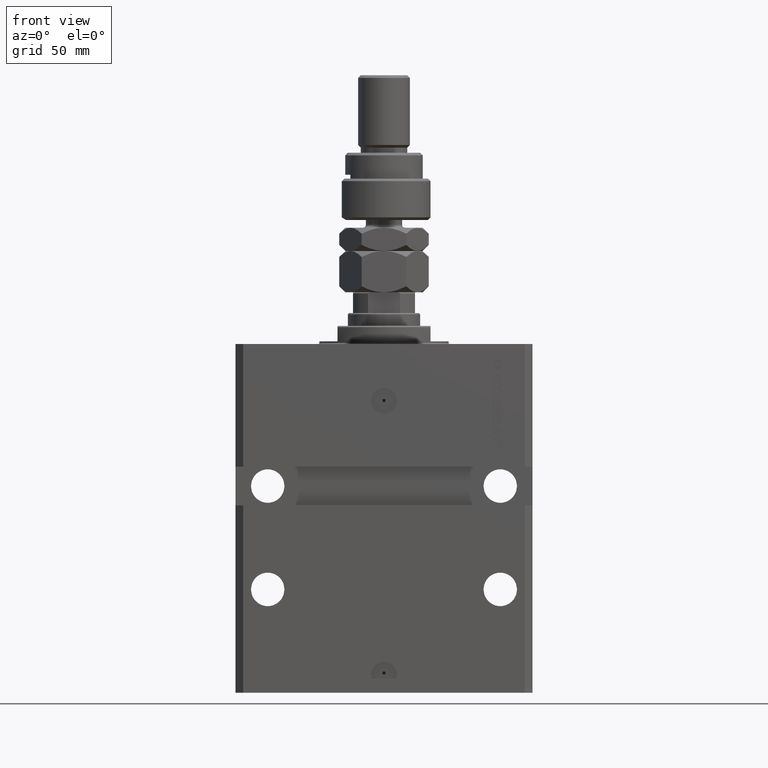
[diagram: clean part render]
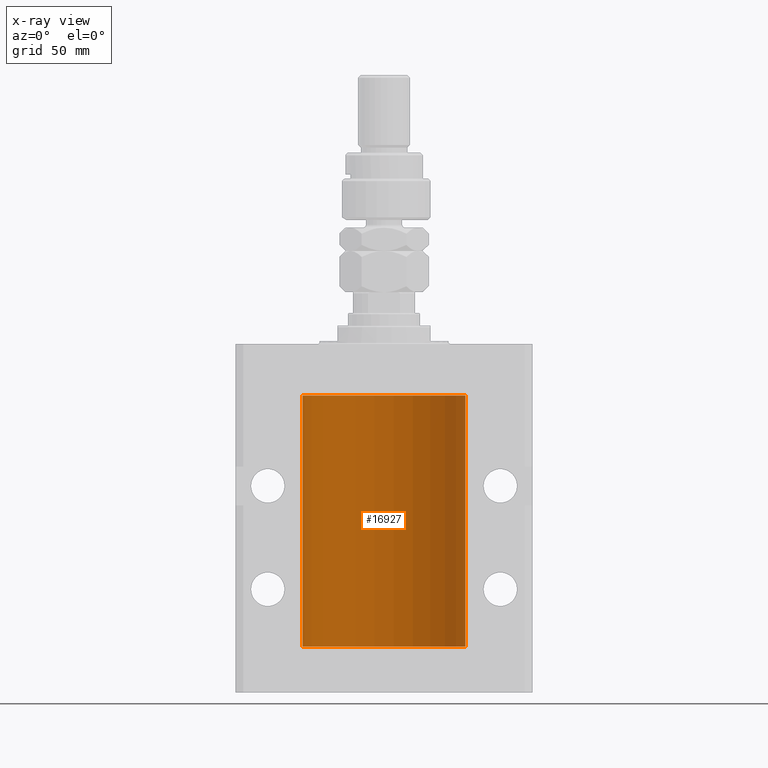
[diagram: x-ray — body ghosted, one internal face saturated and labeled with its STEP entity id]
A machine part, front view, then the same camera in x-ray: the body is ghosted and one INTERNAL B-rep face — a face not visible from any outside direction — is saturated and labeled: STEP entity #16927.
In plain terms, the highlighted cylindrical surface (partial cylindrical patch) has radius 31.5 mm, axis along (0, 0, 1).
Its self-contained STEP definition (entity closure, byte-faithful):
#1102 = VERTEX_POINT ( 'NONE', #31821 ) ;
#2444 = ORIENTED_EDGE ( 'NONE', *, *, #12022, .T. ) ;
#2453 = CARTESIAN_POINT ( 'NONE',  ( -31.49851563474690508, 0.3150284575672371301, -113.4540179115962246 ) ) ;
#3225 = CARTESIAN_POINT ( 'NONE',  ( -31.49528028230855270, 0.5573323339569572488, -113.6734900881931907 ) ) ;
#4104 = CARTESIAN_POINT ( 'NONE',  ( -31.49851563474691218, 0.3150284575672402942, -28.45401791159624239 ) ) ;
#4768 = LINE ( 'NONE', #45773, #21980 ) ;
#5999 = LINE ( 'NONE', #14937, #34172 ) ;
#6951 = EDGE_LOOP ( 'NONE', ( #18523, #44712, #24094, #41570, #22738, #46429, #34996, #2444 ) ) ;
#7022 = CARTESIAN_POINT ( 'NONE',  ( -31.50000000000006395, 3.480980906124966778E-13, -29.62500000000323297 ) ) ;
#7328 = CARTESIAN_POINT ( 'NONE',  ( -31.50000000000006395, 3.480980906124966778E-13, -29.62500000000323297 ) ) ;
#7412 = EDGE_CURVE ( 'NONE', #8446, #28219, #31495, .T. ) ;
#7587 = DIRECTION ( 'NONE',  ( -0.000000000000000000, -0.000000000000000000, 1.000000000000000000 ) ) ;
#7719 = DIRECTION ( 'NONE',  ( -0.000000000000000000, -0.000000000000000000, 1.000000000000000000 ) ) ;
#8420 = EDGE_CURVE ( 'NONE', #1102, #16886, #5999, .T. ) ;
#8446 = VERTEX_POINT ( 'NONE', #23319 ) ;
#8784 = B_SPLINE_CURVE_WITH_KNOTS ( 'NONE', 3,
 ( #23832, #44079, #15174, #4104, #50950, #43049, #26986, #39861, #23307, #20150, #51974, #7022 ),
 .UNSPECIFIED., .F., .F.,
 ( 4, 2, 2, 2, 2, 4 ),
 ( 5.360009401240440187E-19, 0.0002442604562134703173, 0.0004885209124269400925, 0.0009770418248538795345, 0.001465562737280818977, 0.001954083649707758635 ),
 .UNSPECIFIED. ) ;
#9322 = AXIS2_PLACEMENT_3D ( 'NONE', #22734, #7719, #47962 ) ;
#9978 = CARTESIAN_POINT ( 'NONE',  ( 31.50000000000000000, 0.000000000000000000, -117.0999999999999943 ) ) ;
#10608 = CARTESIAN_POINT ( 'NONE',  ( -31.50000000000006395, 3.480981129463732167E-13, -114.6250000000032401 ) ) ;
#11158 = CARTESIAN_POINT ( 'NONE',  ( -31.50000000000006395, 3.480981129463732167E-13, -114.6250000000032401 ) ) ;
#11281 = EDGE_CURVE ( 'NONE', #11913, #33640, #42675, .T. ) ;
#11913 = VERTEX_POINT ( 'NONE', #11966 ) ;
#11966 = CARTESIAN_POINT ( 'NONE',  ( 31.50000000000000000, 0.000000000000000000, -20.00000000000000355 ) ) ;
#12022 = EDGE_CURVE ( 'NONE', #8446, #16886, #42012, .T. ) ;
#12530 = CARTESIAN_POINT ( 'NONE',  ( -31.50000000000000000, 3.857637417314161900E-15, -20.00000000000000355 ) ) ;
#14570 = CARTESIAN_POINT ( 'NONE',  ( -31.49853548231895672, 0.3253851488062226571, -114.5585547052568671 ) ) ;
#14937 = CARTESIAN_POINT ( 'NONE',  ( -31.50000000000000000, 3.857637417314161900E-15, -117.0999999999999943 ) ) ;
#15174 = CARTESIAN_POINT ( 'NONE',  ( -31.49966591610109390, 0.1636376958180632002, -28.39126189995839411 ) ) ;
#15255 = VERTEX_POINT ( 'NONE', #45871 ) ;
#16586 = EDGE_CURVE ( 'NONE', #15255, #28219, #8784, .T. ) ;
#16610 = DIRECTION ( 'NONE',  ( -0.000000000000000000, -0.000000000000000000, 1.000000000000000000 ) ) ;
#16659 = AXIS2_PLACEMENT_3D ( 'NONE', #18188, #21855, #33935 ) ;
#16886 = VERTEX_POINT ( 'NONE', #11158 ) ;
#16927 = ADVANCED_FACE ( 'NONE', ( #31109 ), #19576, .F. ) ;
#18188 = CARTESIAN_POINT ( 'NONE',  ( 0.000000000000000000, 0.000000000000000000, -20.00000000000000355 ) ) ;
#18523 = ORIENTED_EDGE ( 'NONE', *, *, #8420, .F. ) ;
#18777 = CARTESIAN_POINT ( 'NONE',  ( -31.49999999999999289, 0.08259258789479095864, -113.3749999999999858 ) ) ;
#19281 = CARTESIAN_POINT ( 'NONE',  ( -31.50000000000000000, 0.1631661150515248127, -114.6249999999998721 ) ) ;
#19333 = LINE ( 'NONE', #44028, #44836 ) ;
#19576 = CYLINDRICAL_SURFACE ( 'NONE', #9322, 31.50000000000000000 ) ;
#20150 = CARTESIAN_POINT ( 'NONE',  ( -31.49853548231893541, 0.3253851488062241559, -29.55855470525682094 ) ) ;
#21855 = DIRECTION ( 'NONE',  ( 0.000000000000000000, 0.000000000000000000, 1.000000000000000000 ) ) ;
#21980 = VECTOR ( 'NONE', #16610, 1000.000000000000000 ) ;
#22159 = EDGE_CURVE ( 'NONE', #41042, #11913, #4768, .T. ) ;
#22734 = CARTESIAN_POINT ( 'NONE',  ( 0.000000000000000000, 0.000000000000000000, -117.0999999999999943 ) ) ;
#22738 = ORIENTED_EDGE ( 'NONE', *, *, #38876, .F. ) ;
#23307 = CARTESIAN_POINT ( 'NONE',  ( -31.49526081842315151, 0.5587119163470772865, -29.32511513093050937 ) ) ;
#23319 = CARTESIAN_POINT ( 'NONE',  ( -31.50000000000000000, -2.862469004324082213E-15, -113.3750000000000000 ) ) ;
#23832 = CARTESIAN_POINT ( 'NONE',  ( -31.50000000000000000, 6.759071642563815395E-15, -28.37500000000000355 ) ) ;
#24094 = ORIENTED_EDGE ( 'NONE', *, *, #22159, .T. ) ;
#25458 = CIRCLE ( 'NONE', #31334, 31.50000000000000000 ) ;
#26294 = DIRECTION ( 'NONE',  ( 1.000000000000000000, 0.000000000000000000, 0.000000000000000000 ) ) ;
#26986 = CARTESIAN_POINT ( 'NONE',  ( -31.49380014137585704, 0.6249421240571523262, -28.83671479190291365 ) ) ;
#28219 = VERTEX_POINT ( 'NONE', #7328 ) ;
#30312 = CARTESIAN_POINT ( 'NONE',  ( -31.49770767031180441, 0.3843648832734344878, -113.5004608125965717 ) ) ;
#31109 = FACE_OUTER_BOUND ( 'NONE', #6951, .T. ) ;
#31334 = AXIS2_PLACEMENT_3D ( 'NONE', #34961, #46294, #26294 ) ;
#31495 = LINE ( 'NONE', #35717, #46779 ) ;
#31821 = CARTESIAN_POINT ( 'NONE',  ( -31.50000000000000000, 3.857637417314161900E-15, -117.0999999999999943 ) ) ;
#33640 = VERTEX_POINT ( 'NONE', #12530 ) ;
#33935 = DIRECTION ( 'NONE',  ( 1.000000000000000000, 0.000000000000000000, 0.000000000000000000 ) ) ;
#34172 = VECTOR ( 'NONE', #50704, 1000.000000000000000 ) ;
#34961 = CARTESIAN_POINT ( 'NONE',  ( 0.000000000000000000, 0.000000000000000000, -117.0999999999999943 ) ) ;
#34996 = ORIENTED_EDGE ( 'NONE', *, *, #7412, .F. ) ;
#35717 = CARTESIAN_POINT ( 'NONE',  ( -31.50000000000000000, 3.857637417314161900E-15, -117.0999999999999943 ) ) ;
#38006 = EDGE_CURVE ( 'NONE', #41042, #1102, #25458, .T. ) ;
#38876 = EDGE_CURVE ( 'NONE', #15255, #33640, #19333, .T. ) ;
#39861 = CARTESIAN_POINT ( 'NONE',  ( -31.49379784581975983, 0.6250577973157598333, -29.16284184848847971 ) ) ;
#41042 = VERTEX_POINT ( 'NONE', #9978 ) ;
#41570 = ORIENTED_EDGE ( 'NONE', *, *, #11281, .T. ) ;
#42012 = B_SPLINE_CURVE_WITH_KNOTS ( 'NONE', 3,
 ( #47152, #18777, #47411, #2453, #30312, #3225, #42947, #51353, #46641, #14570, #19281, #10608 ),
 .UNSPECIFIED., .F., .F.,
 ( 4, 2, 2, 2, 2, 4 ),
 ( 3.062184955773984539E-18, 0.0002442604562134841409, 0.0004885209124269652460, 0.0009770418248538977491, 0.001465562737280830252, 0.001954083649707762538 ),
 .UNSPECIFIED. ) ;
#42675 = CIRCLE ( 'NONE', #16659, 31.50000000000000000 ) ;
#42947 = CARTESIAN_POINT ( 'NONE',  ( -31.49380014137585704, 0.6249421240571484404, -113.8367147919028923 ) ) ;
#43049 = CARTESIAN_POINT ( 'NONE',  ( -31.49528028230855270, 0.5573323339569594692, -28.67349008819320844 ) ) ;
#44028 = CARTESIAN_POINT ( 'NONE',  ( -31.50000000000000000, 3.857637417314161900E-15, -117.0999999999999943 ) ) ;
#44079 = CARTESIAN_POINT ( 'NONE',  ( -31.49999999999999289, 0.08259258789479796692, -28.37500000000000711 ) ) ;
#44712 = ORIENTED_EDGE ( 'NONE', *, *, #38006, .F. ) ;
#44836 = VECTOR ( 'NONE', #49530, 1000.000000000000000 ) ;
#45773 = CARTESIAN_POINT ( 'NONE',  ( 31.50000000000000000, 0.000000000000000000, -117.0999999999999943 ) ) ;
#45871 = CARTESIAN_POINT ( 'NONE',  ( -31.50000000000000000, 6.759071642563815395E-15, -28.37500000000000355 ) ) ;
#46294 = DIRECTION ( 'NONE',  ( 0.000000000000000000, 0.000000000000000000, 1.000000000000000000 ) ) ;
#46429 = ORIENTED_EDGE ( 'NONE', *, *, #16586, .T. ) ;
#46641 = CARTESIAN_POINT ( 'NONE',  ( -31.49526081842315151, 0.5587119163470788408, -114.3251151309305413 ) ) ;
#46779 = VECTOR ( 'NONE', #7587, 1000.000000000000000 ) ;
#47152 = CARTESIAN_POINT ( 'NONE',  ( -31.50000000000000000, -2.862469004324082213E-15, -113.3750000000000000 ) ) ;
#47411 = CARTESIAN_POINT ( 'NONE',  ( -31.49966591610109390, 0.1636376958180598418, -113.3912618999583657 ) ) ;
#47962 = DIRECTION ( 'NONE',  ( 1.000000000000000000, 0.000000000000000000, 0.000000000000000000 ) ) ;
#49530 = DIRECTION ( 'NONE',  ( -0.000000000000000000, -0.000000000000000000, 1.000000000000000000 ) ) ;
#50704 = DIRECTION ( 'NONE',  ( -0.000000000000000000, -0.000000000000000000, 1.000000000000000000 ) ) ;
#50950 = CARTESIAN_POINT ( 'NONE',  ( -31.49770767031179730, 0.3843648832734374854, -28.50046081259655040 ) ) ;
#51353 = CARTESIAN_POINT ( 'NONE',  ( -31.49379784581975272, 0.6250577973157633860, -114.1628418484884548 ) ) ;
#51974 = CARTESIAN_POINT ( 'NONE',  ( -31.50000000000000000, 0.1631661150515231473, -29.62499999999986144 ) ) ;